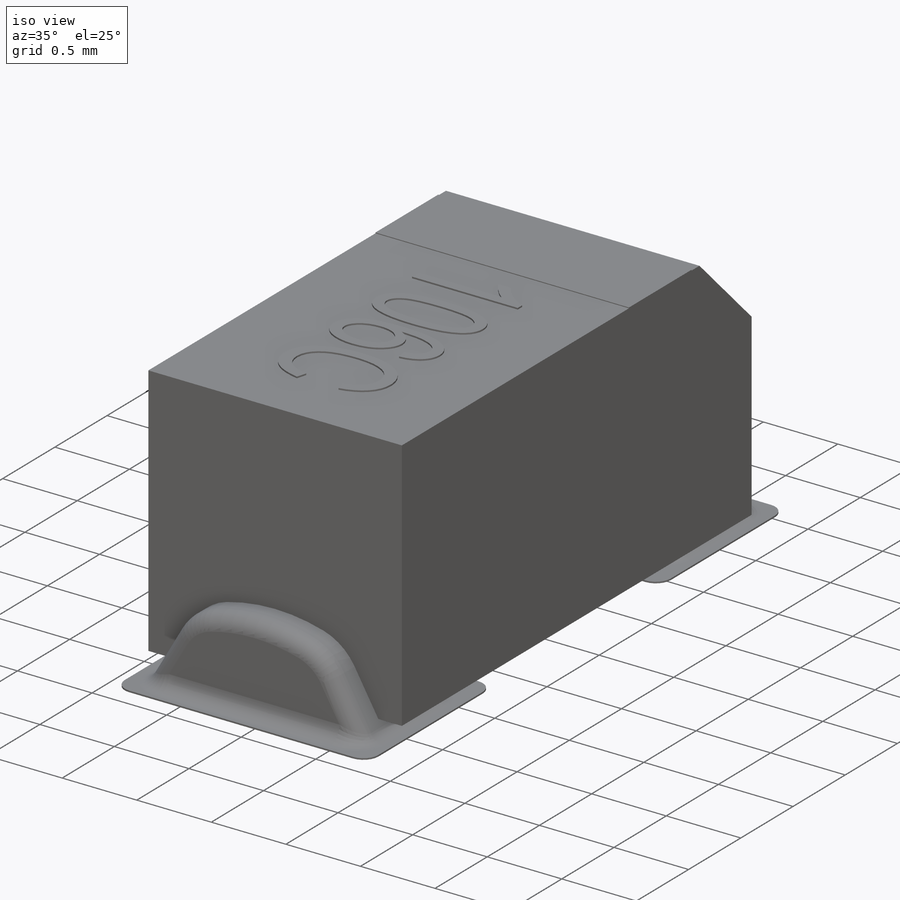
[diagram: iso view]
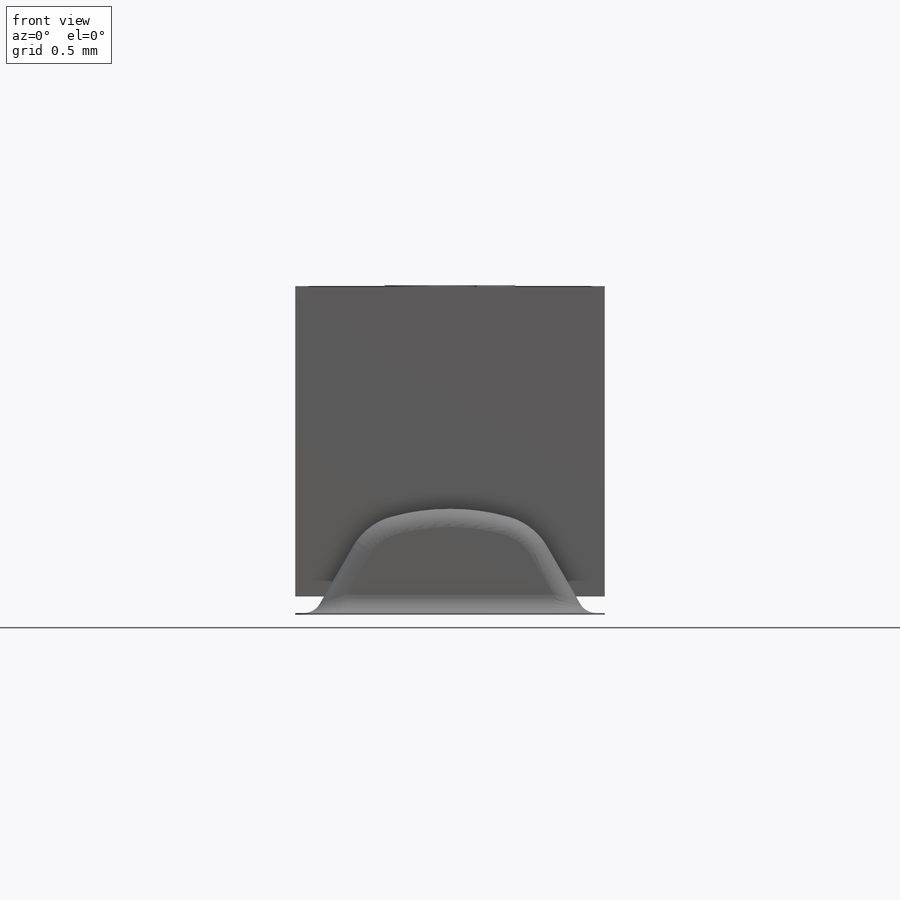
[diagram: front view]
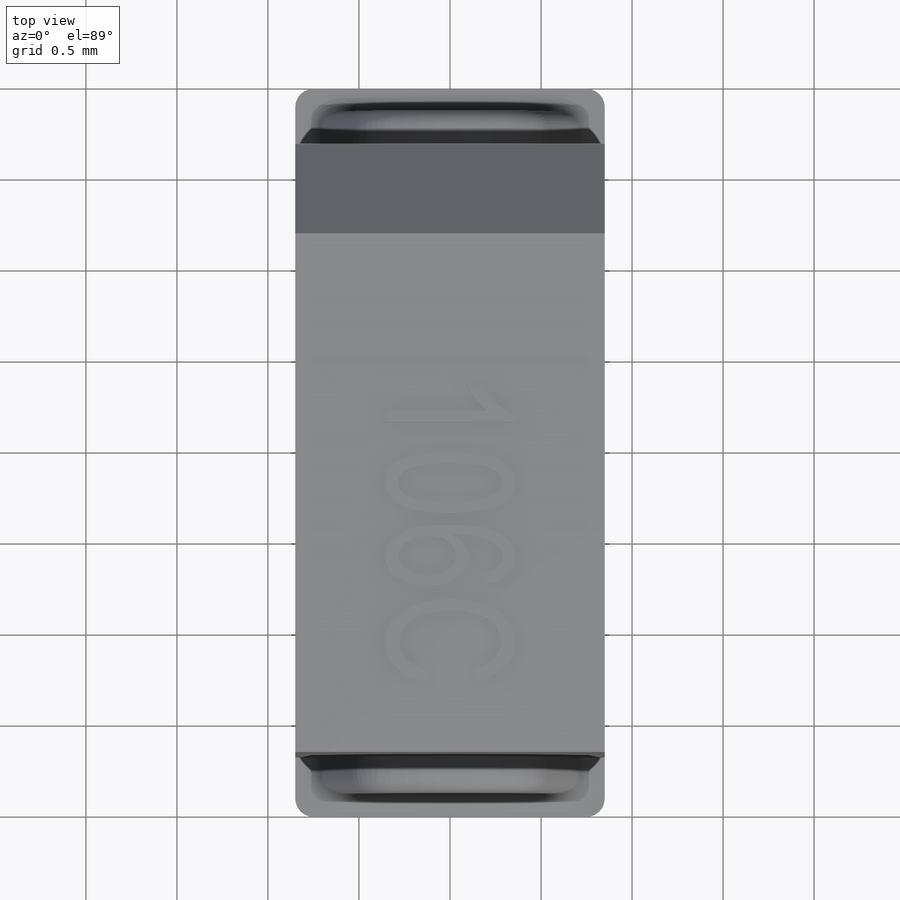
[diagram: top view]
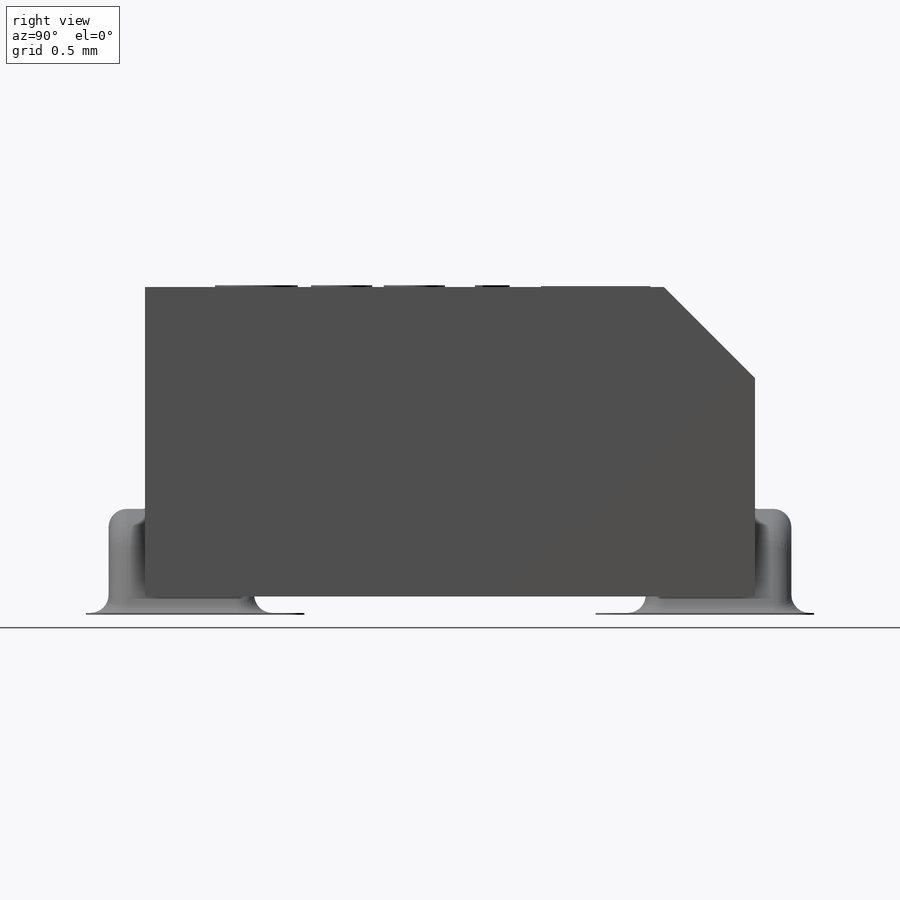
[diagram: right view]
SOLIDWORKS PART (.sldprt)
format: sldprt  version: not decoded by parser v0  size: 563,200 bytes
history: native  units: mm
features: sketch x6, extrude x6, plane x2, fillet x2, material x1, chamfer x1, mirror x1 (+11 scaffold rows collapsed)
feature tree (30):
  scaffold x11  (default folders/planes/origin — collapsed)
  material  "Material <not specified>"
  plane  "Plane1"
  sketch  "Sketch1"  dims[D1=0.1mm D2=1.7mm D3=1.7mm D4=0.85mm]
  extrude  "Boss-Extrude1"  Depth=3.35mm
  chamfer  "Chamfer1"  Distance=0.5mm Angle=45deg
  sketch  "Sketch2"  dims[c1.D2=0.35mm c1.D6=1.2mm c1.D1=1.5mm c2.D2=0.75mm c2.D3=0.6mm c2.D1=1.5mm c3.D3=0.75mm c3.D4=0.2mm c3.D5=~0.295195mm c4.D5=60.0deg]
  extrude  "Boss-Extrude2"  Depth=0.2mm
  fillet  "Fillet1"  Radius=0.1mm
  mirror  "Mirror3"
  plane  "Plane2"
  sketch  "Sketch3"  dims[c1.D7=0.1mm c1.D1=0.8mm c1.D2=1.6mm c1.D3=1.4mm c1.D4=0.85mm c1.D5=1.7mm c1.D6=4.0mm c1.D8=1.5mm c2.D5=1.7mm c2.D8=1.5mm c2.D3=1.2mm]
  extrude  "Boss-Extrude3"  Depth=0.01mm
  sketch  "Sketch4"  dims[D1=0.05mm D2=1.2mm D3=1.4mm D4=0.7mm D5=0.4mm D6=0.63mm]
  fillet  "Fillet2"  Radius=0.1mm
  sketch  "Sketch5"  dims[D1=0.35mm D2=0.6mm D3=1.1mm D4=0.4mm]
  extrude  "Boss-Extrude5"  Depth=0.005mm
  sketch  "Sketch6"  dims[D1=0.4mm D2=0.35mm]
  extrude  "Boss-Extrude6"  Depth=0.01mm
  extrude  "Boss-Extrude4"  Depth=0.005mm
decode coverage: 15 of 16 modeling features carry decoded parameters
note: ~ marks probable driven/reference dimensions
note: suppression state not decoded; provenance and decode notes live in map.json
